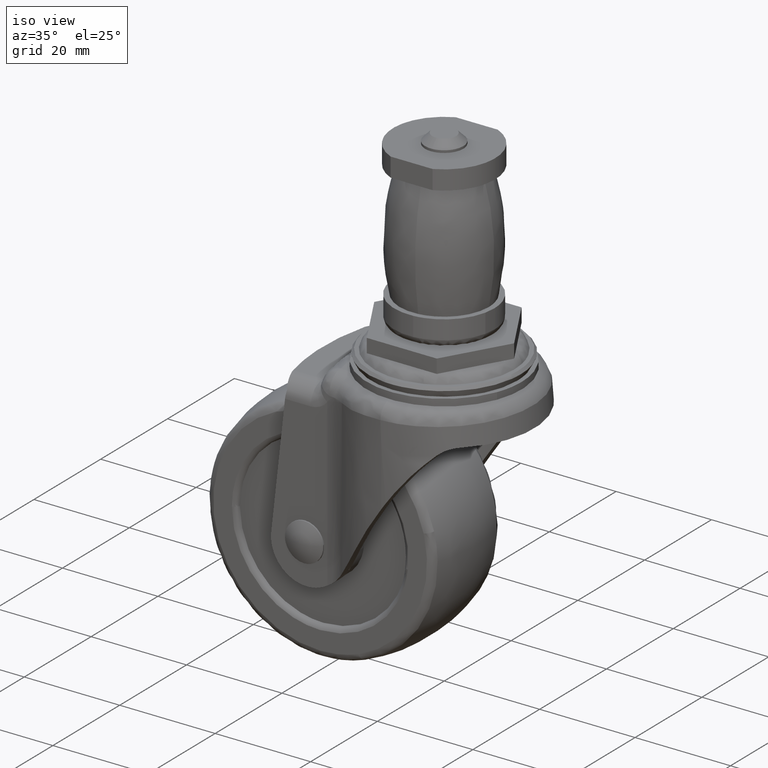
[diagram: clean part render]
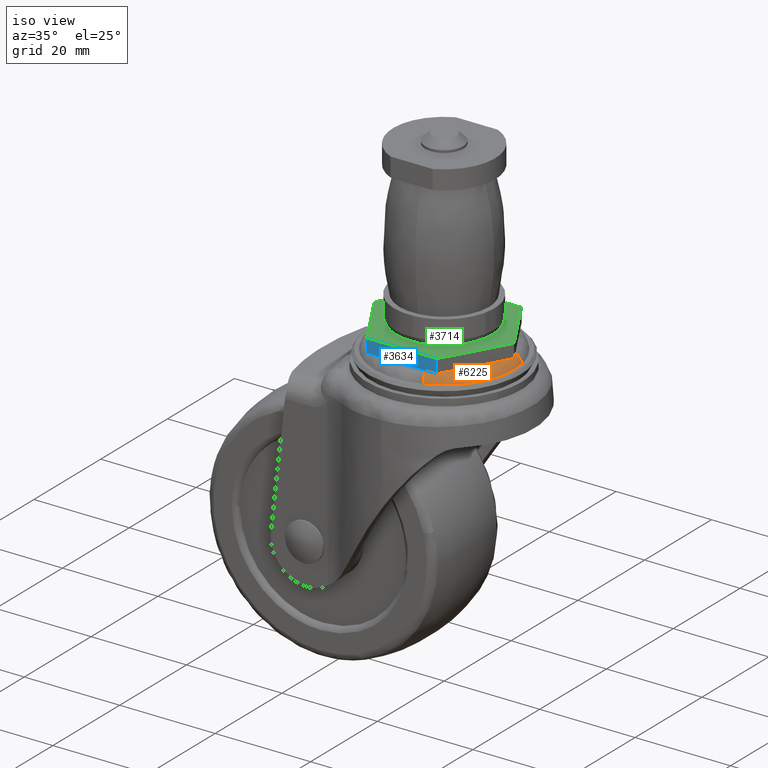
[diagram: same view with three faces highlighted in distinct colors, each labeled with its STEP entity id]
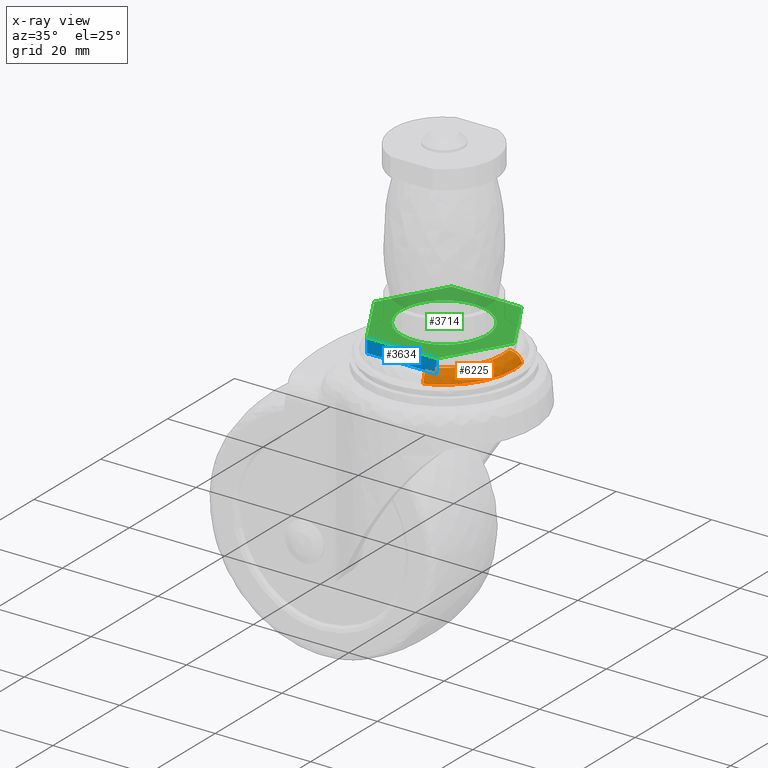
[diagram: x-ray of the same camera — body ghosted, the three highlighted faces saturated]
A machine part, iso view with three faces highlighted in distinct colors.
The next image is the same camera in x-ray (body ghosted, the three faces saturated) — at least one of them is partly hidden behind the body in this view.
Their STEP definitions:

[orange] entity #6225 — the highlighted face is a freeform B-spline surface patch.
#6047=CARTESIAN_POINT('',(4.342269617075402,-11.400074006700700,-1.898178758164921));
#6048=VERTEX_POINT('',#6047);
#6066=CARTESIAN_POINT('',(11.982978166710801,2.285875338785698,-1.898178758164920));
#6067=VERTEX_POINT('',#6066);
#6083=CARTESIAN_POINT('',(14.400331537052731,2.747010156053832,-3.957999999958389));
#6084=VERTEX_POINT('',#6083);
#6085=CARTESIAN_POINT('',(11.982978166710810,2.285875338785698,-1.898178758164920));
#6086=CARTESIAN_POINT('',(14.038425785686304,2.677972941707860,-1.898178766335619));
#6087=CARTESIAN_POINT('',(14.400331537052731,2.747010156053832,-3.957999999958389));
#6095=(BOUNDED_CURVE()B_SPLINE_CURVE(2,(#6085,#6086,#6087),.UNSPECIFIED.,.F.,.U.)B_SPLINE_CURVE_WITH_KNOTS((3,3),(-1.709144380814609,-0.292031289644476),.UNSPECIFIED.)CURVE()GEOMETRIC_REPRESENTATION_ITEM()RATIONAL_B_SPLINE_CURVE((0.896528473409981,0.687356341658740,0.896181692834944))REPRESENTATION_ITEM(''));
#6096=EDGE_CURVE('',#6067,#6084,#6095,.T.);
#6115=CARTESIAN_POINT('',(5.218245470964631,-13.699836764688341,-3.957999999929904));
#6116=VERTEX_POINT('',#6115);
#6132=CARTESIAN_POINT('',(4.342269617075402,-11.400074006700699,-1.898178758164922));
#6133=CARTESIAN_POINT('',(5.087101755144101,-13.355535694645980,-1.898178833389862));
#6134=CARTESIAN_POINT('',(5.218245470964631,-13.699836764688337,-3.957999999929905));
#6142=(BOUNDED_CURVE()B_SPLINE_CURVE(2,(#6132,#6133,#6134),.UNSPECIFIED.,.F.,.U.)B_SPLINE_CURVE_WITH_KNOTS((3,3),(-1.709144345432223,-0.292031289670025),.UNSPECIFIED.)CURVE()GEOMETRIC_REPRESENTATION_ITEM()RATIONAL_B_SPLINE_CURVE((0.841070065908176,0.644837137750174,0.840744746641308))REPRESENTATION_ITEM(''));
#6143=EDGE_CURVE('',#6048,#6116,#6142,.T.);
#6148=CARTESIAN_POINT('',(11.827516505088360,2.256219440254090,-1.903193347186973));
#6149=CARTESIAN_POINT('',(13.718973553080994,-7.659145641113687,-1.903193347186973));
#6150=CARTESIAN_POINT('',(4.285934964523714,-11.252174648510890,-1.903193347186972));
#6151=CARTESIAN_POINT('',(14.158098362882093,2.700801706733746,-1.752691223402717));
#6152=CARTESIAN_POINT('',(16.422262181476249,-9.168360688051065,-1.752691223402717));
#6153=CARTESIAN_POINT('',(5.130467480517709,-13.469386865907849,-1.752691223402717));
#6154=CARTESIAN_POINT('',(14.422862119968459,2.751308094575688,-4.114738076140766));
#6155=CARTESIAN_POINT('',(16.729366972217367,-9.339813771641390,-4.114738076140765));
#6156=CARTESIAN_POINT('',(5.226409874117152,-13.721271362036003,-4.114738076140767));
#6164=(BOUNDED_SURFACE()B_SPLINE_SURFACE(2,2,((#6148,#6151,#6154),(#6149,#6152,#6155),(#6150,#6153,#6156)),.UNSPECIFIED.,.F.,.F.,.U.)B_SPLINE_SURFACE_WITH_KNOTS((3,3),(3,3),(0.0,21.355426850942852),(0.0,3.995646495587239),.UNSPECIFIED.)GEOMETRIC_REPRESENTATION_ITEM()RATIONAL_B_SPLINE_SURFACE(((0.918467746250011,0.665434424649370,0.918086254116428),(0.681736328623568,0.493921341769918,0.681453164573868),(0.861652206019665,0.624271284758302,0.861294312626214)))REPRESENTATION_ITEM('')SURFACE());
#6165=CARTESIAN_POINT('',(12.199057000000099,0.0,-1.898178758164915));
#6166=VERTEX_POINT('',#6165);
#6167=CARTESIAN_POINT('',(12.199057000000099,0.0,-1.898178758164915));
#6168=CARTESIAN_POINT('',(12.199057000000099,-8.407436424574666,-1.898178758164916));
#6169=CARTESIAN_POINT('',(4.342269617075402,-11.400074006700700,-1.898178758164921));
#6177=(BOUNDED_CURVE()B_SPLINE_CURVE(2,(#6167,#6168,#6169),.UNSPECIFIED.,.F.,.U.)B_SPLINE_CURVE_WITH_KNOTS((3,3),(0.500000000000000,0.689552768651247),.UNSPECIFIED.)CURVE()GEOMETRIC_REPRESENTATION_ITEM()RATIONAL_B_SPLINE_CURVE((1.0,0.777925117818939,0.892609505760434))REPRESENTATION_ITEM(''));
#6178=EDGE_CURVE('',#6166,#6048,#6177,.T.);
#6179=ORIENTED_EDGE('',*,*,#6178,.T.);
#6180=ORIENTED_EDGE('',*,*,#6143,.T.);
#6181=CARTESIAN_POINT('',(14.660000449342320,0.0,-3.958000000000105));
#6182=VERTEX_POINT('',#6181);
#6183=CARTESIAN_POINT('',(14.660000449342320,0.0,-3.958000000000105));
#6184=CARTESIAN_POINT('',(14.660000449342322,-10.103487698637597,-3.958000000000105));
#6185=CARTESIAN_POINT('',(5.218245470964631,-13.699836764688335,-3.957999999929904));
#6193=(BOUNDED_CURVE()B_SPLINE_CURVE(2,(#6183,#6184,#6185),.UNSPECIFIED.,.F.,.U.)B_SPLINE_CURVE_WITH_KNOTS((3,3),(0.500000000000000,0.689552769336054),.UNSPECIFIED.)CURVE()GEOMETRIC_REPRESENTATION_ITEM()RATIONAL_B_SPLINE_CURVE((1.0,0.777925117016637,0.892609506589087))REPRESENTATION_ITEM(''));
#6194=EDGE_CURVE('',#6182,#6116,#6193,.T.);
#6195=ORIENTED_EDGE('',*,*,#6194,.F.);
#6196=CARTESIAN_POINT('',(14.400331537052731,2.747010156053831,-3.957999999958390));
#6197=CARTESIAN_POINT('',(14.660000449342325,1.385778047594599,-3.958000000000105));
#6198=CARTESIAN_POINT('',(14.660000449342320,0.0,-3.958000000000105));
#6206=(BOUNDED_CURVE()B_SPLINE_CURVE(2,(#6196,#6197,#6198),.UNSPECIFIED.,.F.,.U.)B_SPLINE_CURVE_WITH_KNOTS((3,3),(0.467838633739769,0.500000000000000),.UNSPECIFIED.)CURVE()GEOMETRIC_REPRESENTATION_ITEM()RATIONAL_B_SPLINE_CURVE((0.934335795158980,0.962320615658410,1.0))REPRESENTATION_ITEM(''));
#6207=EDGE_CURVE('',#6084,#6182,#6206,.T.);
#6208=ORIENTED_EDGE('',*,*,#6207,.F.);
#6209=ORIENTED_EDGE('',*,*,#6096,.F.);
#6210=CARTESIAN_POINT('',(11.982978166710804,2.285875338785698,-1.898178758164921));
#6211=CARTESIAN_POINT('',(12.199057000000094,1.153150401161047,-1.898178758164915));
#6212=CARTESIAN_POINT('',(12.199057000000099,0.0,-1.898178758164915));
#6220=(BOUNDED_CURVE()B_SPLINE_CURVE(2,(#6210,#6211,#6212),.UNSPECIFIED.,.F.,.U.)B_SPLINE_CURVE_WITH_KNOTS((3,3),(0.467838633726542,0.500000000000000),.UNSPECIFIED.)CURVE()GEOMETRIC_REPRESENTATION_ITEM()RATIONAL_B_SPLINE_CURVE((0.934335795135961,0.962320615642914,1.0))REPRESENTATION_ITEM(''));
#6221=EDGE_CURVE('',#6067,#6166,#6220,.T.);
#6222=ORIENTED_EDGE('',*,*,#6221,.T.);
#6223=EDGE_LOOP('',(#6179,#6180,#6195,#6208,#6209,#6222));
#6224=FACE_OUTER_BOUND('',#6223,.T.);
#6225=ADVANCED_FACE('',(#6224),#6164,.T.);

[blue] entity #3634 — the highlighted face is a freeform B-spline surface patch.
#3528=CARTESIAN_POINT('',(7.329992999999890,-12.695931999999900,-2.900000000000000));
#3529=VERTEX_POINT('',#3528);
#3535=CARTESIAN_POINT('',(-7.330006999999911,-12.695931999999900,-2.900000000000000));
#3536=VERTEX_POINT('',#3535);
#3537=CARTESIAN_POINT('',(-7.330006999999911,-12.695931999999900,-2.900000000000000));
#3538=CARTESIAN_POINT('',(7.329992999999890,-12.695931999999900,-2.900000000000000));
#3539=QUASI_UNIFORM_CURVE('',1,(#3537,#3538),.UNSPECIFIED.,.F.,.U.);
#3540=EDGE_CURVE('',#3536,#3529,#3539,.T.);
#3596=CARTESIAN_POINT('',(7.329992999999890,-12.695931999999900,0.0));
#3597=VERTEX_POINT('',#3596);
#3603=CARTESIAN_POINT('',(7.329992999999890,-12.695931999999900,-2.900000000000000));
#3604=CARTESIAN_POINT('',(7.329992999999890,-12.695931999999900,0.0));
#3605=QUASI_UNIFORM_CURVE('',1,(#3603,#3604),.UNSPECIFIED.,.F.,.U.);
#3606=EDGE_CURVE('',#3529,#3597,#3605,.T.);
#3613=CARTESIAN_POINT('',(-8.062274056827750,-12.695931999999900,0.144854994379237));
#3614=CARTESIAN_POINT('',(-8.062274056827750,-12.695931999999900,-3.044855072163299));
#3615=CARTESIAN_POINT('',(8.062259270404047,-12.695931999999900,0.144854994379237));
#3616=CARTESIAN_POINT('',(8.062259270404049,-12.695931999999900,-3.044855072163299));
#3617=B_SPLINE_SURFACE_WITH_KNOTS('',1,1,((#3613,#3615),(#3614,#3616)),.UNSPECIFIED.,.F.,.F.,.U.,(2,2),(2,2),(0.0,3.189710066542536),(0.0,16.124533327231799),.UNSPECIFIED.);
#3618=CARTESIAN_POINT('',(-7.330006999999911,-12.695931999999900,0.0));
#3619=VERTEX_POINT('',#3618);
#3620=CARTESIAN_POINT('',(-7.330006999999911,-12.695931999999900,0.0));
#3621=CARTESIAN_POINT('',(7.329992999999890,-12.695931999999900,0.0));
#3622=QUASI_UNIFORM_CURVE('',1,(#3620,#3621),.UNSPECIFIED.,.F.,.U.);
#3623=EDGE_CURVE('',#3619,#3597,#3622,.T.);
#3624=ORIENTED_EDGE('',*,*,#3623,.F.);
#3625=CARTESIAN_POINT('',(-7.330006999999911,-12.695931999999900,-2.900000000000000));
#3626=CARTESIAN_POINT('',(-7.330006999999911,-12.695931999999900,0.0));
#3627=QUASI_UNIFORM_CURVE('',1,(#3625,#3626),.UNSPECIFIED.,.F.,.U.);
#3628=EDGE_CURVE('',#3536,#3619,#3627,.T.);
#3629=ORIENTED_EDGE('',*,*,#3628,.F.);
#3630=ORIENTED_EDGE('',*,*,#3540,.T.);
#3631=ORIENTED_EDGE('',*,*,#3606,.T.);
#3632=EDGE_LOOP('',(#3624,#3629,#3630,#3631));
#3633=FACE_OUTER_BOUND('',#3632,.T.);
#3634=ADVANCED_FACE('',(#3633),#3617,.T.);

[green] entity #3714 — the highlighted face is a freeform B-spline surface patch.
#2948=CARTESIAN_POINT('',(-0.226170859224893,8.997157706345991,8.542907E-014));
#2949=VERTEX_POINT('',#2948);
#2950=CARTESIAN_POINT('',(9.0,0.0,0.0));
#2951=VERTEX_POINT('',#2950);
#2952=CARTESIAN_POINT('',(-0.226170859224893,8.997157706345991,8.542907E-014));
#2953=CARTESIAN_POINT('',(-0.113103289274953,9.0,8.526513E-014));
#2954=CARTESIAN_POINT('',(0.0,9.0,8.526513E-014));
#2955=CARTESIAN_POINT('',(9.0,9.0,8.526513E-014));
#2956=CARTESIAN_POINT('',(9.0,0.0,0.0));
#2964=(BOUNDED_CURVE()B_SPLINE_CURVE(2,(#2952,#2953,#2954,#2955,#2956),.UNSPECIFIED.,.F.,.U.)B_SPLINE_CURVE_WITH_KNOTS((3,2,3),(0.245579891763411,0.250000000000000,0.500000000000000),.UNSPECIFIED.)CURVE()GEOMETRIC_REPRESENTATION_ITEM()RATIONAL_B_SPLINE_CURVE((0.989826157667117,0.994821521084326,1.0,0.707106781186547,1.0))REPRESENTATION_ITEM(''));
#2965=EDGE_CURVE('',#2949,#2951,#2964,.T.);
#2984=CARTESIAN_POINT('',(-8.997157705883936,-0.226170859172176,8.542907E-014));
#2985=VERTEX_POINT('',#2984);
#2999=CARTESIAN_POINT('',(9.0,0.0,0.0));
#3000=CARTESIAN_POINT('',(9.0,-9.0,8.526513E-014));
#3001=CARTESIAN_POINT('',(0.0,-9.0,8.526513E-014));
#3002=CARTESIAN_POINT('',(-8.776600885385022,-9.0,8.526513E-014));
#3003=CARTESIAN_POINT('',(-8.997157705883936,-0.226170859172176,8.542907E-014));
#3011=(BOUNDED_CURVE()B_SPLINE_CURVE(2,(#2999,#3000,#3001,#3002,#3003),.UNSPECIFIED.,.F.,.U.)B_SPLINE_CURVE_WITH_KNOTS((3,2,3),(0.500000000000000,0.750000000000000,0.995579891765008),.UNSPECIFIED.)CURVE()GEOMETRIC_REPRESENTATION_ITEM()RATIONAL_B_SPLINE_CURVE((1.0,0.707106781186547,1.0,0.712285260100350,0.989826157670727))REPRESENTATION_ITEM(''));
#3012=EDGE_CURVE('',#2951,#2985,#3011,.T.);
#3034=CARTESIAN_POINT('',(-9.0,0.0,8.526513E-014));
#3035=VERTEX_POINT('',#3034);
#3036=CARTESIAN_POINT('',(-9.0,0.0,8.526513E-014));
#3037=CARTESIAN_POINT('',(-9.0,8.776600885304882,8.526513E-014));
#3038=CARTESIAN_POINT('',(-0.226170859224893,8.997157706345991,8.542907E-014));
#3046=(BOUNDED_CURVE()B_SPLINE_CURVE(2,(#3036,#3037,#3038),.UNSPECIFIED.,.F.,.U.)B_SPLINE_CURVE_WITH_KNOTS((3,3),(0.0,0.245579891763411),.UNSPECIFIED.)CURVE()GEOMETRIC_REPRESENTATION_ITEM()RATIONAL_B_SPLINE_CURVE((1.0,0.712285260102222,0.989826157667117))REPRESENTATION_ITEM(''));
#3047=EDGE_CURVE('',#3035,#2949,#3046,.T.);
#3049=CARTESIAN_POINT('',(-8.997157705883936,-0.226170859172176,8.542907E-014));
#3050=CARTESIAN_POINT('',(-9.0,-0.113103289233858,8.526513E-014));
#3051=CARTESIAN_POINT('',(-9.0,0.0,8.526513E-014));
#3059=(BOUNDED_CURVE()B_SPLINE_CURVE(2,(#3049,#3050,#3051),.UNSPECIFIED.,.F.,.U.)B_SPLINE_CURVE_WITH_KNOTS((3,3),(0.995579891765008,1.0),.UNSPECIFIED.)CURVE()GEOMETRIC_REPRESENTATION_ITEM()RATIONAL_B_SPLINE_CURVE((0.989826157670729,0.994821521086198,1.0))REPRESENTATION_ITEM(''));
#3060=EDGE_CURVE('',#2985,#3035,#3059,.T.);
#3568=CARTESIAN_POINT('',(14.659992999999901,0.0,0.0));
#3569=VERTEX_POINT('',#3568);
#3570=CARTESIAN_POINT('',(7.329992999999890,12.695931999999960,0.0));
#3571=VERTEX_POINT('',#3570);
#3572=CARTESIAN_POINT('',(14.659992999999901,0.0,0.0));
#3573=CARTESIAN_POINT('',(7.329992999999890,12.695931999999960,0.0));
#3574=QUASI_UNIFORM_CURVE('',1,(#3572,#3573),.UNSPECIFIED.,.F.,.U.);
#3575=EDGE_CURVE('',#3569,#3571,#3574,.T.);
#3596=CARTESIAN_POINT('',(7.329992999999890,-12.695931999999900,0.0));
#3597=VERTEX_POINT('',#3596);
#3598=CARTESIAN_POINT('',(7.329992999999890,-12.695931999999900,0.0));
#3599=CARTESIAN_POINT('',(14.659992999999901,0.0,0.0));
#3600=QUASI_UNIFORM_CURVE('',1,(#3598,#3599),.UNSPECIFIED.,.F.,.U.);
#3601=EDGE_CURVE('',#3597,#3569,#3600,.T.);
#3618=CARTESIAN_POINT('',(-7.330006999999911,-12.695931999999900,0.0));
#3619=VERTEX_POINT('',#3618);
#3620=CARTESIAN_POINT('',(-7.330006999999911,-12.695931999999900,0.0));
#3621=CARTESIAN_POINT('',(7.329992999999890,-12.695931999999900,0.0));
#3622=QUASI_UNIFORM_CURVE('',1,(#3620,#3621),.UNSPECIFIED.,.F.,.U.);
#3623=EDGE_CURVE('',#3619,#3597,#3622,.T.);
#3640=CARTESIAN_POINT('',(-14.660007000000000,0.0,0.0));
#3641=VERTEX_POINT('',#3640);
#3642=CARTESIAN_POINT('',(-14.660007000000000,0.0,0.0));
#3643=CARTESIAN_POINT('',(-7.330006999999911,-12.695931999999900,0.0));
#3644=QUASI_UNIFORM_CURVE('',1,(#3642,#3643),.UNSPECIFIED.,.F.,.U.);
#3645=EDGE_CURVE('',#3641,#3619,#3644,.T.);
#3662=CARTESIAN_POINT('',(-7.330006999999911,12.695931999999960,0.0));
#3663=VERTEX_POINT('',#3662);
#3664=CARTESIAN_POINT('',(-7.330006999999911,12.695931999999960,0.0));
#3665=CARTESIAN_POINT('',(-14.660007000000000,0.0,0.0));
#3666=QUASI_UNIFORM_CURVE('',1,(#3664,#3665),.UNSPECIFIED.,.F.,.U.);
#3667=EDGE_CURVE('',#3663,#3641,#3666,.T.);
#3684=CARTESIAN_POINT('',(7.329992999999890,12.695931999999960,0.0));
#3685=CARTESIAN_POINT('',(-7.330006999999911,12.695931999999960,0.0));
#3686=QUASI_UNIFORM_CURVE('',1,(#3684,#3685),.UNSPECIFIED.,.F.,.U.);
#3687=EDGE_CURVE('',#3571,#3663,#3686,.T.);
#3695=CARTESIAN_POINT('',(-16.124541493642500,-13.964256034306841,0.0));
#3696=CARTESIAN_POINT('',(16.124527755783639,-13.964256034306841,0.0));
#3697=CARTESIAN_POINT('',(-16.124541493642500,13.964256261327851,0.0));
#3698=CARTESIAN_POINT('',(16.124527755783639,13.964256261327851,0.0));
#3699=B_SPLINE_SURFACE_WITH_KNOTS('',1,1,((#3695,#3697),(#3696,#3698)),.UNSPECIFIED.,.F.,.F.,.U.,(2,2),(2,2),(0.0,32.249069249426142),(0.0,27.928512295634690),.UNSPECIFIED.);
#3700=ORIENTED_EDGE('',*,*,#3687,.T.);
#3701=ORIENTED_EDGE('',*,*,#3667,.T.);
#3702=ORIENTED_EDGE('',*,*,#3645,.T.);
#3703=ORIENTED_EDGE('',*,*,#3623,.T.);
#3704=ORIENTED_EDGE('',*,*,#3601,.T.);
#3705=ORIENTED_EDGE('',*,*,#3575,.T.);
#3706=EDGE_LOOP('',(#3700,#3701,#3702,#3703,#3704,#3705));
#3707=FACE_OUTER_BOUND('',#3706,.T.);
#3708=ORIENTED_EDGE('',*,*,#3012,.T.);
#3709=ORIENTED_EDGE('',*,*,#3060,.T.);
#3710=ORIENTED_EDGE('',*,*,#3047,.T.);
#3711=ORIENTED_EDGE('',*,*,#2965,.T.);
#3712=EDGE_LOOP('',(#3708,#3709,#3710,#3711));
#3713=FACE_BOUND('',#3712,.T.);
#3714=ADVANCED_FACE('',(#3707,#3713),#3699,.T.);